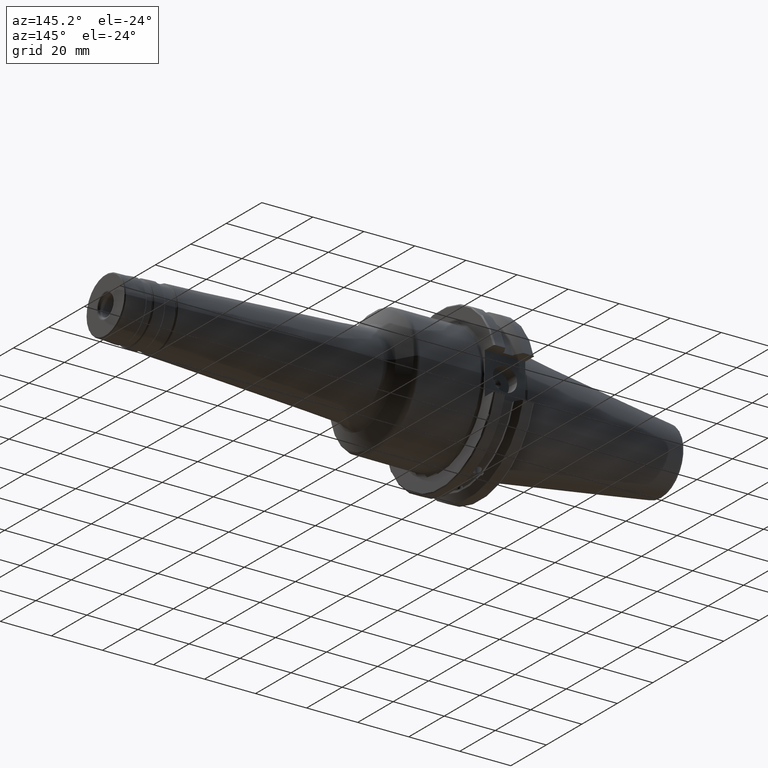
[diagram: clean part render]
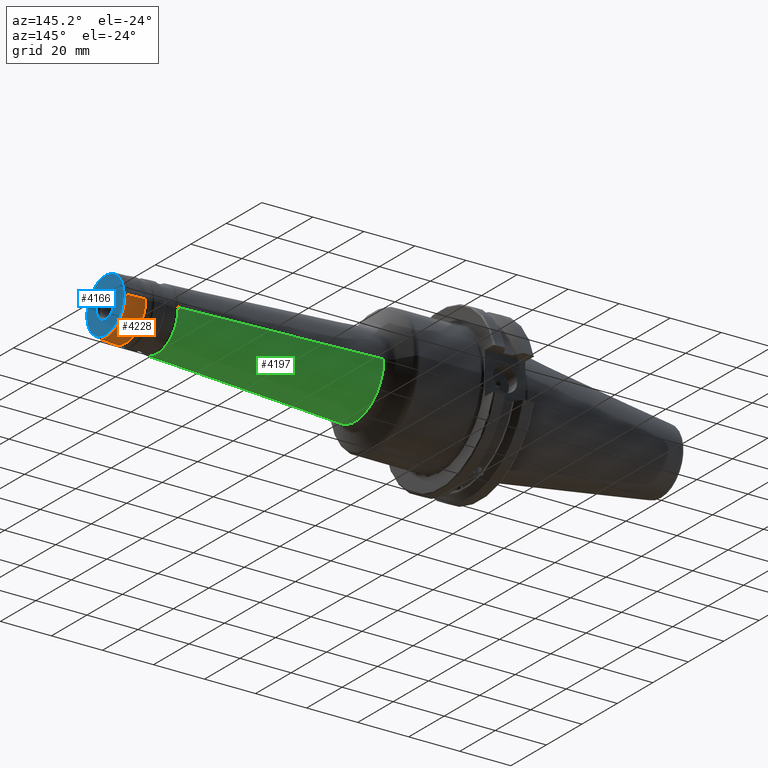
[diagram: same view with three faces highlighted in distinct colors, each labeled with its STEP entity id]
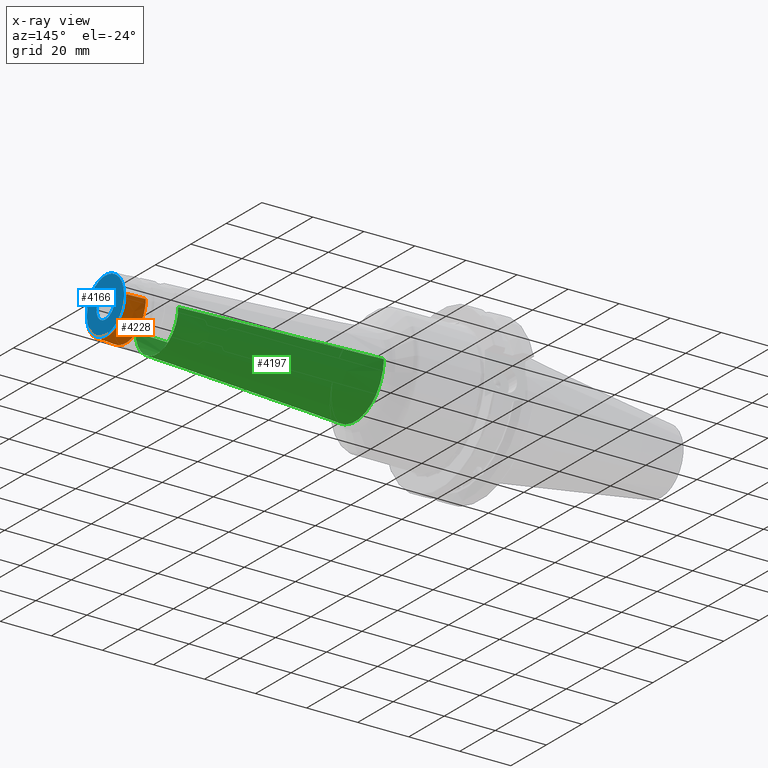
[diagram: x-ray of the same camera — body ghosted, the three highlighted faces saturated]
A machine part, auxiliary view with three faces highlighted in distinct colors.
The next image is the same camera in x-ray (body ghosted, the three faces saturated) — at least one of them is partly hidden behind the body in this view.
Their STEP definitions:

[orange] entity #4228 — the highlighted conical surface has half-angle 3 deg.
#1558=CARTESIAN_POINT('',(5.887046719125E0,0.E0,0.E0));
#1559=DIRECTION('',(-1.E0,0.E0,0.E0));
#1560=DIRECTION('',(0.E0,1.E0,0.E0));
#1561=AXIS2_PLACEMENT_3D('',#1558,#1559,#1560);
#1563=DIRECTION('',(-9.986295347546E-1,5.233595624294E-2,1.587529493859E-10));
#1564=VECTOR('',#1563,2.916435622624E-1);
#1565=CARTESIAN_POINT('',(5.887046719128E0,4.339932993606E-1,
-1.074887085743E-11));
#1566=LINE('',#1565,#1564);
#1567=CARTESIAN_POINT('',(5.595802844231E0,0.E0,0.E0));
#1568=DIRECTION('',(1.E0,0.E0,0.E0));
#1569=DIRECTION('',(0.E0,-1.E0,0.E0));
#1570=AXIS2_PLACEMENT_3D('',#1567,#1568,#1569);
#1572=DIRECTION('',(-9.986295347546E-1,-5.233595624294E-2,-1.587529718206E-10));
#1573=VECTOR('',#1572,2.916435622624E-1);
#1574=CARTESIAN_POINT('',(5.887046719128E0,-4.339932993606E-1,
1.074885696719E-11));
#1575=LINE('',#1574,#1573);
#2605=CARTESIAN_POINT('',(5.595802844231E0,-4.492567440738E-1,0.E0));
#2606=CARTESIAN_POINT('',(5.595802844231E0,4.492567440738E-1,0.E0));
#2607=VERTEX_POINT('',#2605);
#2608=VERTEX_POINT('',#2606);
#2609=CARTESIAN_POINT('',(5.887046719125E0,4.339932993608E-1,0.E0));
#2610=CARTESIAN_POINT('',(5.887046719125E0,-4.339932993608E-1,0.E0));
#2611=VERTEX_POINT('',#2609);
#2612=VERTEX_POINT('',#2610);
#4214=CARTESIAN_POINT('',(3.970586969984E0,0.E0,0.E0));
#4215=DIRECTION('',(-1.E0,0.E0,0.E0));
#4216=DIRECTION('',(0.E0,1.E0,0.E0));
#4217=AXIS2_PLACEMENT_3D('',#4214,#4215,#4216);
#4218=CONICAL_SURFACE('',#4217,5.344306988986E-1,3.E0);
#4219=ORIENTED_EDGE('',*,*,#4172,.F.);
#4221=ORIENTED_EDGE('',*,*,#4220,.T.);
#4223=ORIENTED_EDGE('',*,*,#4222,.F.);
#4225=ORIENTED_EDGE('',*,*,#4224,.F.);
#4226=EDGE_LOOP('',(#4219,#4221,#4223,#4225));
#4227=FACE_OUTER_BOUND('',#4226,.F.);
#4228=ADVANCED_FACE('',(#4227),#4218,.T.);
#1562=CIRCLE('',#1561,4.339932993608E-1);
#1571=CIRCLE('',#1570,4.492567440738E-1);
#4172=EDGE_CURVE('',#2611,#2612,#1562,.T.);
#4220=EDGE_CURVE('',#2611,#2608,#1566,.T.);
#4222=EDGE_CURVE('',#2607,#2608,#1571,.T.);
#4224=EDGE_CURVE('',#2612,#2607,#1575,.T.);

[blue] entity #4166 — the highlighted planar face has unit normal (1, 0, 0).
#1497=CARTESIAN_POINT('',(5.906E0,0.E0,0.E0));
#1498=DIRECTION('',(-1.E0,0.E0,0.E0));
#1499=DIRECTION('',(0.E0,1.E0,0.E0));
#1500=AXIS2_PLACEMENT_3D('',#1497,#1498,#1499);
#1502=CARTESIAN_POINT('',(5.906E0,0.E0,0.E0));
#1503=DIRECTION('',(-1.E0,0.E0,0.E0));
#1504=DIRECTION('',(0.E0,-1.E0,0.E0));
#1505=AXIS2_PLACEMENT_3D('',#1502,#1503,#1504);
#1507=CARTESIAN_POINT('',(5.906E0,0.E0,0.E0));
#1508=DIRECTION('',(-1.E0,0.E0,0.E0));
#1509=DIRECTION('',(0.E0,-1.E0,0.E0));
#1510=AXIS2_PLACEMENT_3D('',#1507,#1508,#1509);
#1512=CARTESIAN_POINT('',(5.906E0,0.E0,0.E0));
#1513=DIRECTION('',(-1.E0,0.E0,0.E0));
#1514=DIRECTION('',(0.E0,1.E0,0.E0));
#1515=AXIS2_PLACEMENT_3D('',#1512,#1513,#1514);
#2510=CARTESIAN_POINT('',(5.906E0,-1.965E-1,0.E0));
#2511=CARTESIAN_POINT('',(5.906E0,1.965E-1,0.E0));
#2512=VERTEX_POINT('',#2510);
#2513=VERTEX_POINT('',#2511);
#2613=CARTESIAN_POINT('',(5.906E0,4.140207086657E-1,0.E0));
#2614=CARTESIAN_POINT('',(5.906E0,-4.140207086657E-1,0.E0));
#2615=VERTEX_POINT('',#2613);
#2616=VERTEX_POINT('',#2614);
#4150=CARTESIAN_POINT('',(5.906E0,0.E0,0.E0));
#4151=DIRECTION('',(1.E0,0.E0,0.E0));
#4152=DIRECTION('',(0.E0,-1.E0,0.E0));
#4153=AXIS2_PLACEMENT_3D('',#4150,#4151,#4152);
#4154=PLANE('',#4153);
#4156=ORIENTED_EDGE('',*,*,#4155,.T.);
#4158=ORIENTED_EDGE('',*,*,#4157,.T.);
#4159=EDGE_LOOP('',(#4156,#4158));
#4160=FACE_OUTER_BOUND('',#4159,.F.);
#4161=ORIENTED_EDGE('',*,*,#4140,.F.);
#4163=ORIENTED_EDGE('',*,*,#4162,.F.);
#4164=EDGE_LOOP('',(#4161,#4163));
#4165=FACE_BOUND('',#4164,.F.);
#4166=ADVANCED_FACE('',(#4160,#4165),#4154,.T.);
#1501=CIRCLE('',#1500,4.140207086657E-1);
#1506=CIRCLE('',#1505,4.140207086657E-1);
#1511=CIRCLE('',#1510,1.965E-1);
#1516=CIRCLE('',#1515,1.965E-1);
#4140=EDGE_CURVE('',#2512,#2513,#1511,.T.);
#4155=EDGE_CURVE('',#2615,#2616,#1501,.T.);
#4157=EDGE_CURVE('',#2616,#2615,#1506,.T.);
#4162=EDGE_CURVE('',#2513,#2512,#1516,.T.);

[green] entity #4197 — the highlighted conical surface has half-angle 3 deg.
#1522=CARTESIAN_POINT('',(5.113635951261E0,0.E0,0.E0));
#1523=DIRECTION('',(-1.E0,0.E0,0.E0));
#1524=DIRECTION('',(0.E0,1.E0,0.E0));
#1525=AXIS2_PLACEMENT_3D('',#1522,#1523,#1524);
#1527=DIRECTION('',(-9.986295347546E-1,5.233595624294E-2,8.293330409811E-12));
#1528=VECTOR('',#1527,3.063707434982E0);
#1529=CARTESIAN_POINT('',(5.113635951262E0,4.745260401781E-1,
-2.596442158526E-11));
#1530=LINE('',#1529,#1528);
#1531=CARTESIAN_POINT('',(2.054127220842E0,0.E0,0.E0));
#1532=DIRECTION('',(1.E0,0.E0,0.E0));
#1533=DIRECTION('',(0.E0,-1.E0,0.E0));
#1534=AXIS2_PLACEMENT_3D('',#1531,#1532,#1533);
#1536=DIRECTION('',(-9.986295347546E-1,-5.233595624294E-2,-8.293351809118E-12));
#1537=VECTOR('',#1536,3.063707434982E0);
#1538=CARTESIAN_POINT('',(5.113635951262E0,-4.745260401781E-1,
2.596439979271E-11));
#1539=LINE('',#1538,#1537);
#2589=CARTESIAN_POINT('',(2.054127220842E0,-6.348680984364E-1,0.E0));
#2590=CARTESIAN_POINT('',(2.054127220842E0,6.348680984364E-1,0.E0));
#2591=VERTEX_POINT('',#2589);
#2592=VERTEX_POINT('',#2590);
#2593=CARTESIAN_POINT('',(5.113635951261E0,4.745260401781E-1,0.E0));
#2594=CARTESIAN_POINT('',(5.113635951261E0,-4.745260401781E-1,0.E0));
#2595=VERTEX_POINT('',#2593);
#2596=VERTEX_POINT('',#2594);
#4182=CARTESIAN_POINT('',(3.970586969984E0,0.E0,0.E0));
#4183=DIRECTION('',(-1.E0,0.E0,0.E0));
#4184=DIRECTION('',(0.E0,1.E0,0.E0));
#4185=AXIS2_PLACEMENT_3D('',#4182,#4183,#4184);
#4186=CONICAL_SURFACE('',#4185,5.344306988986E-1,3.E0);
#4188=ORIENTED_EDGE('',*,*,#4187,.F.);
#4190=ORIENTED_EDGE('',*,*,#4189,.T.);
#4192=ORIENTED_EDGE('',*,*,#4191,.F.);
#4194=ORIENTED_EDGE('',*,*,#4193,.F.);
#4195=EDGE_LOOP('',(#4188,#4190,#4192,#4194));
#4196=FACE_OUTER_BOUND('',#4195,.F.);
#4197=ADVANCED_FACE('',(#4196),#4186,.T.);
#1526=CIRCLE('',#1525,4.745260401781E-1);
#1535=CIRCLE('',#1534,6.348680984364E-1);
#4187=EDGE_CURVE('',#2595,#2596,#1526,.T.);
#4189=EDGE_CURVE('',#2595,#2592,#1530,.T.);
#4191=EDGE_CURVE('',#2591,#2592,#1535,.T.);
#4193=EDGE_CURVE('',#2596,#2591,#1539,.T.);